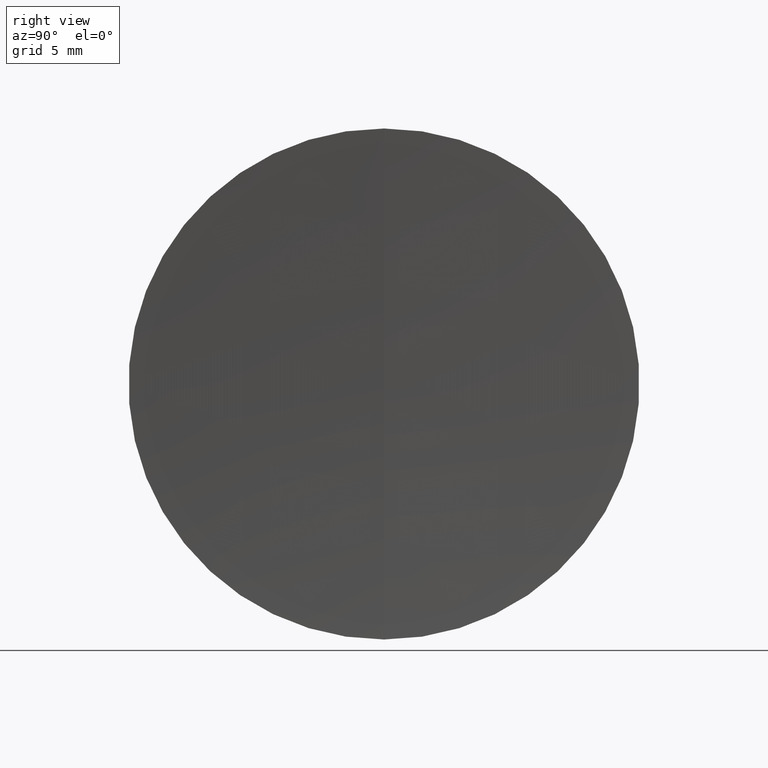
[diagram: clean part render]
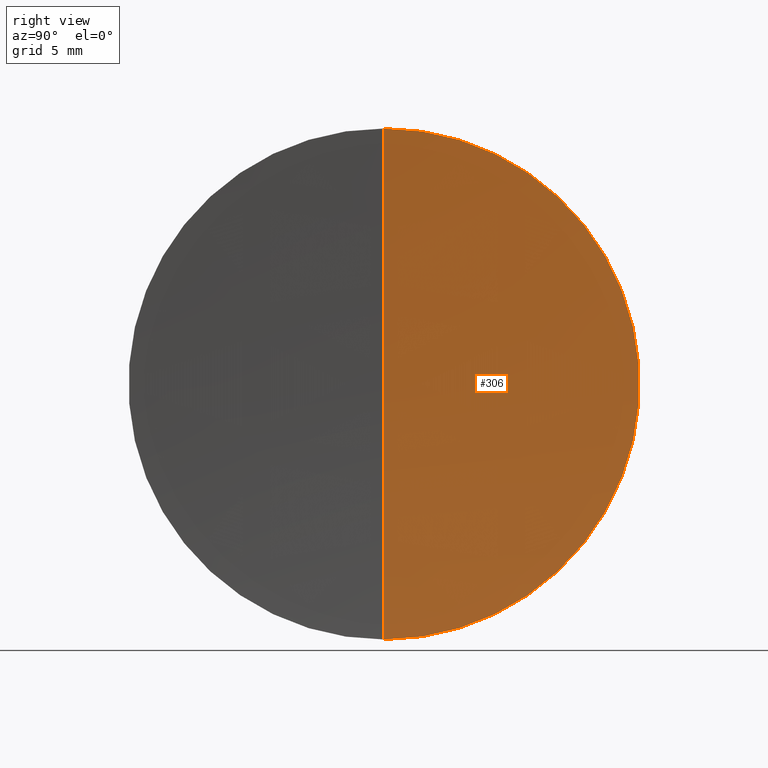
[diagram: same view with one face highlighted and labeled with its STEP entity id]
A machine part, right view. The second image highlights one B-rep face of the part: STEP entity #306.
In plain terms, the highlighted spherical surface has radius 194.54 mm.
Its self-contained STEP definition (entity closure, byte-faithful):
#2 = VERTEX_POINT ( 'NONE', #332 ) ;
#21 = VERTEX_POINT ( 'NONE', #227 ) ;
#41 = DIRECTION ( 'NONE',  ( 0.0000000000000000000, 1.000000000000000000, -0.0000000000000000000 ) ) ;
#49 = DIRECTION ( 'NONE',  ( 0.0000000000000000000, -1.000000000000000000, -1.224646799147353200E-016 ) ) ;
#53 = CIRCLE ( 'NONE', #279, 194.5399999999999900 ) ;
#72 = ORIENTED_EDGE ( 'NONE', *, *, #161, .F. ) ;
#86 = DIRECTION ( 'NONE',  ( 0.0000000000000000000, 0.0000000000000000000, 1.000000000000000000 ) ) ;
#89 = CARTESIAN_POINT ( 'NONE',  ( 98.19036787198696500, -1.555301434917148100E-015, 12.70000000000007900 ) ) ;
#113 = DIRECTION ( 'NONE',  ( -1.000000000000000000, -0.0000000000000000000, -0.0000000000000000000 ) ) ;
#137 = FACE_OUTER_BOUND ( 'NONE', #176, .T. ) ;
#140 = AXIS2_PLACEMENT_3D ( 'NONE', #213, #328, #345 ) ;
#148 = ORIENTED_EDGE ( 'NONE', *, *, #217, .F. ) ;
#156 = ORIENTED_EDGE ( 'NONE', *, *, #322, .T. ) ;
#159 = DIRECTION ( 'NONE',  ( 0.0000000000000000000, 1.224646799147353200E-016, -1.000000000000000000 ) ) ;
#161 = EDGE_CURVE ( 'NONE', #174, #2, #251, .T. ) ;
#167 = CIRCLE ( 'NONE', #195, 194.5399999999999900 ) ;
#174 = VERTEX_POINT ( 'NONE', #89 ) ;
#176 = EDGE_LOOP ( 'NONE', ( #72, #156, #148 ) ) ;
#189 = AXIS2_PLACEMENT_3D ( 'NONE', #249, #113, #86 ) ;
#195 = AXIS2_PLACEMENT_3D ( 'NONE', #237, #49, #159 ) ;
#202 = CARTESIAN_POINT ( 'NONE',  ( 292.3153832615549300, 0.0000000000000000000, 0.0000000000000000000 ) ) ;
#213 = CARTESIAN_POINT ( 'NONE',  ( 292.3153832615549300, 0.0000000000000000000, 0.0000000000000000000 ) ) ;
#217 = EDGE_CURVE ( 'NONE', #2, #21, #53, .T. ) ;
#227 = CARTESIAN_POINT ( 'NONE',  ( 97.77538326155493600, 0.0000000000000000000, -1.191213941530630400E-014 ) ) ;
#229 = DIRECTION ( 'NONE',  ( 0.0000000000000000000, 0.0000000000000000000, 1.000000000000000000 ) ) ;
#237 = CARTESIAN_POINT ( 'NONE',  ( 292.3153832615549300, 0.0000000000000000000, 0.0000000000000000000 ) ) ;
#249 = CARTESIAN_POINT ( 'NONE',  ( 98.19036787198697900, 0.0000000000000000000, 0.0000000000000000000 ) ) ;
#251 = CIRCLE ( 'NONE', #189, 12.70000000000010100 ) ;
#279 = AXIS2_PLACEMENT_3D ( 'NONE', #202, #41, #229 ) ;
#306 = ADVANCED_FACE ( 'NONE', ( #137 ), #339, .F. ) ;
#322 = EDGE_CURVE ( 'NONE', #174, #21, #167, .T. ) ;
#328 = DIRECTION ( 'NONE',  ( -0.0000000000000000000, -1.000000000000000000, -0.0000000000000000000 ) ) ;
#332 = CARTESIAN_POINT ( 'NONE',  ( 98.19036787198696500, 0.0000000000000000000, -12.70000000000007900 ) ) ;
#339 = SPHERICAL_SURFACE ( 'NONE', #140, 194.5399999999999900 ) ;
#345 = DIRECTION ( 'NONE',  ( 0.0000000000000000000, 0.0000000000000000000, -1.000000000000000000 ) ) ;